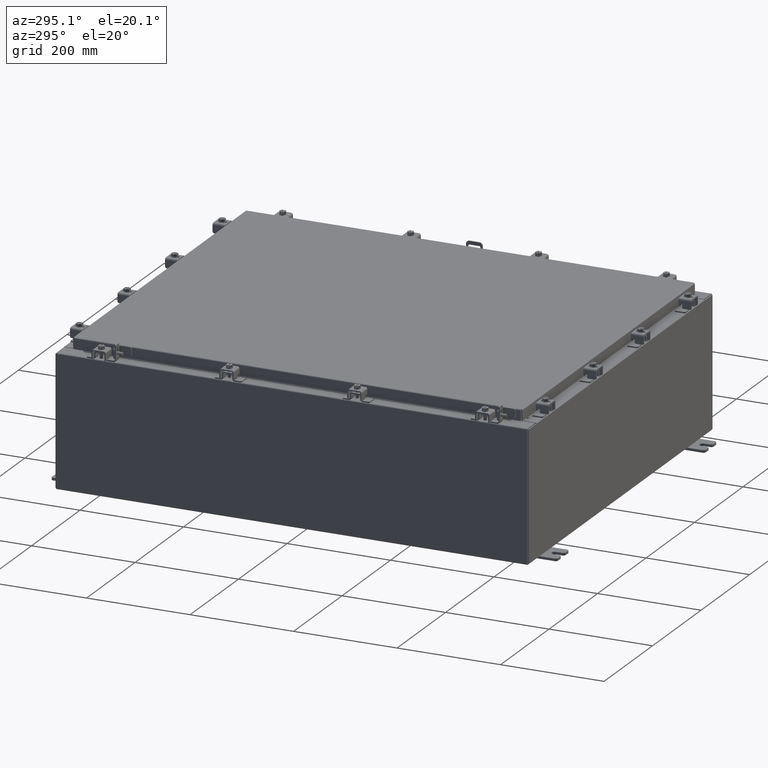
[diagram: clean part render]
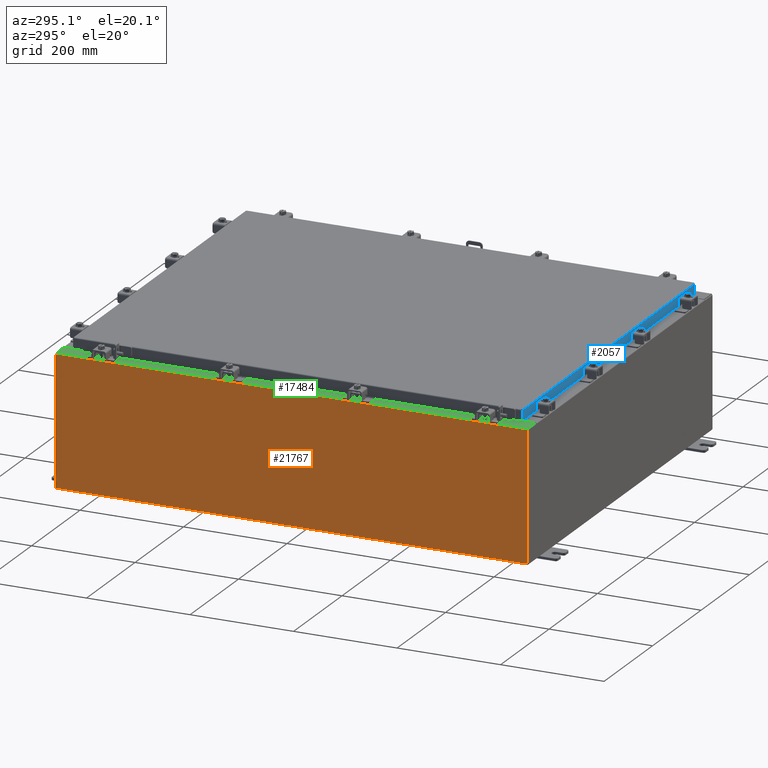
[diagram: same view with three faces highlighted in distinct colors, each labeled with its STEP entity id]
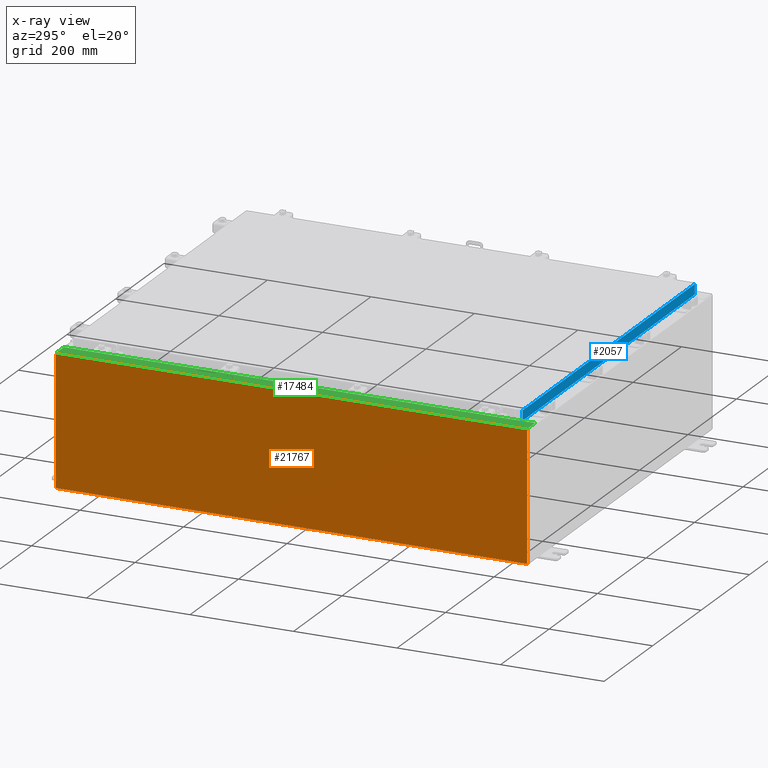
[diagram: x-ray of the same camera — body ghosted, the three highlighted faces saturated]
A machine part, auxiliary view with three faces highlighted in distinct colors.
The next image is the same camera in x-ray (body ghosted, the three faces saturated) — at least one of them is partly hidden behind the body in this view.
Their STEP definitions:

[orange] entity #21767 — the highlighted planar face has unit normal (1, 0, 0).
#1710 = EDGE_CURVE ( 'NONE', #20941, #20794, #20282, .T. ) ;
#1871 = LINE ( 'NONE', #9190, #11332 ) ;
#2667 = CARTESIAN_POINT ( 'NONE',  ( -15.00000000000000400, 0.0000000000000000000, -5.310705656892490100E-014 ) ) ;
#3526 = CARTESIAN_POINT ( 'NONE',  ( -15.00000000000000400, -17.92530000000000000, 0.01299999999999984700 ) ) ;
#3697 = DIRECTION ( 'NONE',  ( -0.0000000000000000000, 1.000000000000000000, -0.0000000000000000000 ) ) ;
#4293 = DIRECTION ( 'NONE',  ( 0.0000000000000000000, 1.000000000000000000, 0.0000000000000000000 ) ) ;
#4809 = PLANE ( 'NONE',  #21250 ) ;
#5246 = VECTOR ( 'NONE', #3697, 39.37007874015748100 ) ;
#6042 = VECTOR ( 'NONE', #4293, 39.37007874015748100 ) ;
#6737 = DIRECTION ( 'NONE',  ( 1.000000000000000000, 0.0000000000000000000, 3.523082860860887800E-015 ) ) ;
#7227 = LINE ( 'NONE', #11799, #6042 ) ;
#8649 = EDGE_CURVE ( 'NONE', #21251, #20794, #21217, .T. ) ;
#9190 = CARTESIAN_POINT ( 'NONE',  ( -15.00000000000000400, -17.92530000000000000, -5.310705656892490100E-014 ) ) ;
#10629 = ORIENTED_EDGE ( 'NONE', *, *, #8649, .T. ) ;
#11058 = ORIENTED_EDGE ( 'NONE', *, *, #22326, .T. ) ;
#11332 = VECTOR ( 'NONE', #24275, 39.37007874015748100 ) ;
#11799 = CARTESIAN_POINT ( 'NONE',  ( -15.00000000000003700, -17.92530000000000000, 9.837599999999998300 ) ) ;
#11827 = ORIENTED_EDGE ( 'NONE', *, *, #1710, .F. ) ;
#11847 = CARTESIAN_POINT ( 'NONE',  ( -15.00000000000003700, 17.92530000000000000, 9.837599999999998300 ) ) ;
#14516 = DIRECTION ( 'NONE',  ( 3.523082860860888200E-015, 0.0000000000000000000, -1.000000000000000000 ) ) ;
#16257 = ORIENTED_EDGE ( 'NONE', *, *, #22038, .T. ) ;
#16866 = CARTESIAN_POINT ( 'NONE',  ( -15.00000000000003700, -17.92530000000000000, 9.837599999999998300 ) ) ;
#16872 = CARTESIAN_POINT ( 'NONE',  ( -15.00000000000000400, 17.92530000000000000, 0.01299999999999984700 ) ) ;
#17253 = VERTEX_POINT ( 'NONE', #16866 ) ;
#19889 = DIRECTION ( 'NONE',  ( 3.523082860860887800E-015, 0.0000000000000000000, -1.000000000000000000 ) ) ;
#20028 = CARTESIAN_POINT ( 'NONE',  ( -15.00000000000000400, 17.92530000000000000, 0.01299999999999984300 ) ) ;
#20282 = LINE ( 'NONE', #16872, #5246 ) ;
#20484 = FACE_OUTER_BOUND ( 'NONE', #23049, .T. ) ;
#20614 = VECTOR ( 'NONE', #14516, 39.37007874015748100 ) ;
#20794 = VERTEX_POINT ( 'NONE', #20028 ) ;
#20941 = VERTEX_POINT ( 'NONE', #3526 ) ;
#21217 = LINE ( 'NONE', #22139, #20614 ) ;
#21250 = AXIS2_PLACEMENT_3D ( 'NONE', #2667, #6737, #19889 ) ;
#21251 = VERTEX_POINT ( 'NONE', #11847 ) ;
#21767 = ADVANCED_FACE ( 'NONE', ( #20484 ), #4809, .F. ) ;
#22038 = EDGE_CURVE ( 'NONE', #20941, #17253, #1871, .T. ) ;
#22139 = CARTESIAN_POINT ( 'NONE',  ( -15.00000000000000400, 17.92530000000000000, -5.310705656892490100E-014 ) ) ;
#22326 = EDGE_CURVE ( 'NONE', #17253, #21251, #7227, .T. ) ;
#23049 = EDGE_LOOP ( 'NONE', ( #11058, #10629, #11827, #16257 ) ) ;
#24275 = DIRECTION ( 'NONE',  ( -3.523082860860888200E-015, 0.0000000000000000000, 1.000000000000000000 ) ) ;

[blue] entity #2057 — the highlighted planar face has unit normal (-0, 1, -0).
#38 = CARTESIAN_POINT ( 'NONE',  ( 13.98915786437626500, -17.09400000000000100, -0.08770000000000007000 ) ) ;
#180 = DIRECTION ( 'NONE',  ( 0.0000000000000000000, -2.818880942772360100E-015, -1.000000000000000000 ) ) ;
#473 = DIRECTION ( 'NONE',  ( -1.000000000000000000, 4.379057701015054300E-047, 1.212817869044015600E-016 ) ) ;
#1074 = VECTOR ( 'NONE', #2923, 39.37007874015748100 ) ;
#1279 = CARTESIAN_POINT ( 'NONE',  ( 13.23915786437626900, -17.09399999999999800, -0.8500000000000006400 ) ) ;
#1397 = ORIENTED_EDGE ( 'NONE', *, *, #23998, .F. ) ;
#1922 = LINE ( 'NONE', #15482, #21423 ) ;
#2057 = ADVANCED_FACE ( 'NONE', ( #19112 ), #17856, .F. ) ;
#2702 = EDGE_CURVE ( 'NONE', #7568, #12283, #17916, .T. ) ;
#2883 = VECTOR ( 'NONE', #3189, 39.37007874015748100 ) ;
#2923 = DIRECTION ( 'NONE',  ( -0.0000000000000000000, -2.818880942772360100E-015, -1.000000000000000000 ) ) ;
#3189 = DIRECTION ( 'NONE',  ( -1.000000000000000000, 0.0000000000000000000, 0.0000000000000000000 ) ) ;
#4353 = LINE ( 'NONE', #19964, #24432 ) ;
#4691 = ORIENTED_EDGE ( 'NONE', *, *, #14552, .F. ) ;
#5322 = VERTEX_POINT ( 'NONE', #38 ) ;
#5406 = VECTOR ( 'NONE', #180, 39.37007874015748100 ) ;
#6539 = CARTESIAN_POINT ( 'NONE',  ( 5.844078221047488800E-030, -17.09400000000000100, 4.844676449176230700E-014 ) ) ;
#6619 = DIRECTION ( 'NONE',  ( 0.0000000000000000000, 2.818880942772360100E-015, 1.000000000000000000 ) ) ;
#6802 = DIRECTION ( 'NONE',  ( 1.000000000000000000, 3.418789178101959700E-031, -9.318824769679573900E-046 ) ) ;
#7568 = VERTEX_POINT ( 'NONE', #17601 ) ;
#7849 = CARTESIAN_POINT ( 'NONE',  ( 14.07799999999999900, -17.09400000000000500, -0.8499999999999996400 ) ) ;
#10061 = VERTEX_POINT ( 'NONE', #17418 ) ;
#10274 = EDGE_CURVE ( 'NONE', #5322, #11517, #11118, .T. ) ;
#11118 = LINE ( 'NONE', #18011, #1074 ) ;
#11517 = VERTEX_POINT ( 'NONE', #12593 ) ;
#12186 = DIRECTION ( 'NONE',  ( -3.418789178101958800E-031, 1.000000000000000000, -2.818880942772360100E-015 ) ) ;
#12283 = VERTEX_POINT ( 'NONE', #22290 ) ;
#12584 = EDGE_LOOP ( 'NONE', ( #1397, #18577, #23070, #20715, #4691, #17194 ) ) ;
#12593 = CARTESIAN_POINT ( 'NONE',  ( 13.98915786437626700, -17.09400000000000500, -0.8499999999999996400 ) ) ;
#13398 = CARTESIAN_POINT ( 'NONE',  ( -13.98915786437626900, -17.09400000000000100, 4.844676449176230700E-014 ) ) ;
#14552 = EDGE_CURVE ( 'NONE', #11517, #7568, #1922, .T. ) ;
#15280 = LINE ( 'NONE', #7849, #19110 ) ;
#15414 = LINE ( 'NONE', #13398, #5406 ) ;
#15482 = CARTESIAN_POINT ( 'NONE',  ( 14.07799999999999900, -17.09400000000000500, -0.8499999999999996400 ) ) ;
#17194 = ORIENTED_EDGE ( 'NONE', *, *, #10274, .F. ) ;
#17386 = EDGE_CURVE ( 'NONE', #12283, #10061, #15280, .T. ) ;
#17418 = CARTESIAN_POINT ( 'NONE',  ( -13.98915786437626900, -17.09400000000000500, -0.8499999999999963100 ) ) ;
#17601 = CARTESIAN_POINT ( 'NONE',  ( 13.23915786437626900, -17.09399999999999800, -0.8500000000000006400 ) ) ;
#17856 = PLANE ( 'NONE',  #21601 ) ;
#17916 = LINE ( 'NONE', #1279, #2883 ) ;
#18011 = CARTESIAN_POINT ( 'NONE',  ( 13.98915786437626700, -17.09400000000000100, -0.07469999999999978000 ) ) ;
#18117 = CARTESIAN_POINT ( 'NONE',  ( -13.98915786437626900, -17.09400000000000100, -0.08770000000000007000 ) ) ;
#18577 = ORIENTED_EDGE ( 'NONE', *, *, #22906, .T. ) ;
#19082 = DIRECTION ( 'NONE',  ( -1.000000000000000000, 4.379057701015054300E-047, 1.212817869044015600E-016 ) ) ;
#19110 = VECTOR ( 'NONE', #19082, 39.37007874015748100 ) ;
#19112 = FACE_OUTER_BOUND ( 'NONE', #12584, .T. ) ;
#19964 = CARTESIAN_POINT ( 'NONE',  ( 14.07799999999999800, -17.09400000000000100, -0.08770000000000007000 ) ) ;
#20715 = ORIENTED_EDGE ( 'NONE', *, *, #2702, .F. ) ;
#20784 = VERTEX_POINT ( 'NONE', #18117 ) ;
#21423 = VECTOR ( 'NONE', #473, 39.37007874015748100 ) ;
#21601 = AXIS2_PLACEMENT_3D ( 'NONE', #6539, #12186, #6619 ) ;
#22290 = CARTESIAN_POINT ( 'NONE',  ( -13.23915786437626900, -17.09399999999999800, -0.8500000000000006400 ) ) ;
#22906 = EDGE_CURVE ( 'NONE', #20784, #10061, #15414, .T. ) ;
#23070 = ORIENTED_EDGE ( 'NONE', *, *, #17386, .F. ) ;
#23998 = EDGE_CURVE ( 'NONE', #20784, #5322, #4353, .T. ) ;
#24432 = VECTOR ( 'NONE', #6802, 39.37007874015748100 ) ;

[green] entity #17484 — the highlighted planar face has unit normal (0, 0, -1).
#70 = CARTESIAN_POINT ( 'NONE',  ( -7.105562016127585500E-014, 17.92530000000000000, 9.925300000000104800 ) ) ;
#367 = DIRECTION ( 'NONE',  ( 1.000000000000000000, -8.758115402030108600E-047, 7.132762385546384700E-015 ) ) ;
#602 = EDGE_CURVE ( 'NONE', #5800, #18126, #14696, .T. ) ;
#1046 = AXIS2_PLACEMENT_3D ( 'NONE', #8263, #21416, #10132 ) ;
#1253 = ORIENTED_EDGE ( 'NONE', *, *, #19678, .F. ) ;
#1603 = CARTESIAN_POINT ( 'NONE',  ( -13.75005000000003900, -16.63109999999998600, 9.925300000000007100 ) ) ;
#1877 = EDGE_CURVE ( 'NONE', #8857, #5800, #11727, .T. ) ;
#1879 = VERTEX_POINT ( 'NONE', #23015 ) ;
#1893 = VECTOR ( 'NONE', #18082, 39.37007874015748100 ) ;
#2461 = DIRECTION ( 'NONE',  ( -7.132762385546384700E-015, -0.0000000000000000000, 1.000000000000000000 ) ) ;
#2550 = CARTESIAN_POINT ( 'NONE',  ( -13.71270000000004100, -16.59374999999998900, 9.925300000000007100 ) ) ;
#3109 = CARTESIAN_POINT ( 'NONE',  ( -13.75005000000003900, 16.63110000000000000, 9.925300000000007100 ) ) ;
#4066 = VERTEX_POINT ( 'NONE', #1603 ) ;
#4213 = DIRECTION ( 'NONE',  ( 1.000000000000000000, 0.0000000000000000000, 0.0000000000000000000 ) ) ;
#4515 = DIRECTION ( 'NONE',  ( -0.0000000000000000000, 1.000000000000000000, -0.0000000000000000000 ) ) ;
#4778 = ORIENTED_EDGE ( 'NONE', *, *, #22789, .F. ) ;
#4908 = CARTESIAN_POINT ( 'NONE',  ( -13.69970000000003900, -5.858168245728885200E-030, 9.925300000000007100 ) ) ;
#5758 = VERTEX_POINT ( 'NONE', #12440 ) ;
#5800 = VERTEX_POINT ( 'NONE', #3109 ) ;
#5846 = CARTESIAN_POINT ( 'NONE',  ( -13.75005000000003900, -16.61242499999998800, 9.925300000000007100 ) ) ;
#5915 = ORIENTED_EDGE ( 'NONE', *, *, #1877, .F. ) ;
#6119 = CARTESIAN_POINT ( 'NONE',  ( -13.69970000000003900, 16.63110000000000400, 9.925300000000007100 ) ) ;
#6487 = ORIENTED_EDGE ( 'NONE', *, *, #7069, .F. ) ;
#7006 = CARTESIAN_POINT ( 'NONE',  ( -13.71270000000004100, -16.59374999999998900, 9.925300000000007100 ) ) ;
#7069 = EDGE_CURVE ( 'NONE', #19553, #1879, #15676, .T. ) ;
#7726 = CARTESIAN_POINT ( 'NONE',  ( -13.69970000000003900, 17.92530000000000000, 9.925300000000007100 ) ) ;
#7772 = DIRECTION ( 'NONE',  ( 1.000000000000000000, 0.0000000000000000000, 0.0000000000000000000 ) ) ;
#7801 = LINE ( 'NONE', #22488, #17177 ) ;
#7859 = LINE ( 'NONE', #24224, #22286 ) ;
#7989 = CARTESIAN_POINT ( 'NONE',  ( -13.75005000000003900, 16.59375000000000000, 9.925300000000007100 ) ) ;
#8263 = CARTESIAN_POINT ( 'NONE',  ( -7.105562016127585500E-014, 0.0000000000000000000, 9.925300000000104800 ) ) ;
#8642 = ORIENTED_EDGE ( 'NONE', *, *, #10632, .T. ) ;
#8673 = EDGE_CURVE ( 'NONE', #16698, #13141, #15602, .T. ) ;
#8714 = LINE ( 'NONE', #70, #18660 ) ;
#8857 = VERTEX_POINT ( 'NONE', #11311 ) ;
#9342 = VECTOR ( 'NONE', #4515, 39.37007874015748100 ) ;
#9586 = EDGE_CURVE ( 'NONE', #18470, #16698, #10288, .T. ) ;
#9898 = DIRECTION ( 'NONE',  ( -1.000000000000000000, -4.340572780399910900E-014, 0.0000000000000000000 ) ) ;
#10132 = DIRECTION ( 'NONE',  ( -1.000000000000000000, 0.0000000000000000000, -7.132762385546384700E-015 ) ) ;
#10288 = LINE ( 'NONE', #23008, #18497 ) ;
#10366 = CARTESIAN_POINT ( 'NONE',  ( -13.69970000000003900, -16.63109999999998600, 9.925300000000007100 ) ) ;
#10632 = EDGE_CURVE ( 'NONE', #12515, #5758, #8714, .T. ) ;
#10676 = VECTOR ( 'NONE', #15746, 39.37007874015748100 ) ;
#11196 = VECTOR ( 'NONE', #16501, 39.37007874015748100 ) ;
#11311 = CARTESIAN_POINT ( 'NONE',  ( -13.69970000000003900, 16.63110000000000400, 9.925300000000007100 ) ) ;
#11404 = DIRECTION ( 'NONE',  ( -1.000000000000000000, -1.087045829762336900E-031, -7.132762385546384700E-015 ) ) ;
#11727 = LINE ( 'NONE', #6119, #21159 ) ;
#12240 = ORIENTED_EDGE ( 'NONE', *, *, #19333, .F. ) ;
#12440 = CARTESIAN_POINT ( 'NONE',  ( -14.91230000000003700, 17.92530000000000000, 9.925299999999998200 ) ) ;
#12515 = VERTEX_POINT ( 'NONE', #7726 ) ;
#12623 = CARTESIAN_POINT ( 'NONE',  ( -14.91230000000003700, -17.92530000000000000, 9.925299999999998200 ) ) ;
#12699 = EDGE_LOOP ( 'NONE', ( #5915, #16640, #8642, #12240, #13215, #19797, #4778, #17466, #6487, #1253, #19053, #17026 ) ) ;
#13141 = VERTEX_POINT ( 'NONE', #10366 ) ;
#13201 = EDGE_CURVE ( 'NONE', #8857, #12515, #15060, .T. ) ;
#13215 = ORIENTED_EDGE ( 'NONE', *, *, #9586, .T. ) ;
#13557 = LINE ( 'NONE', #15484, #18538 ) ;
#13639 = VERTEX_POINT ( 'NONE', #21112 ) ;
#13778 = CARTESIAN_POINT ( 'NONE',  ( -13.75005000000003900, 16.61242500000000200, 9.925300000000007100 ) ) ;
#14596 = CARTESIAN_POINT ( 'NONE',  ( -13.69970000000003900, -5.858168245728885200E-030, 9.925300000000007100 ) ) ;
#14696 = CIRCLE ( 'NONE', #15065, 0.01867499999999949400 ) ;
#15060 = LINE ( 'NONE', #4908, #1893 ) ;
#15065 = AXIS2_PLACEMENT_3D ( 'NONE', #13778, #2461, #15662 ) ;
#15360 = EDGE_CURVE ( 'NONE', #1879, #4066, #16059, .T. ) ;
#15484 = CARTESIAN_POINT ( 'NONE',  ( -13.75005000000003900, 16.59375000000000000, 9.925300000000007100 ) ) ;
#15602 = LINE ( 'NONE', #14596, #11196 ) ;
#15662 = DIRECTION ( 'NONE',  ( 1.000000000000000000, 0.0000000000000000000, 0.0000000000000000000 ) ) ;
#15676 = LINE ( 'NONE', #2550, #10676 ) ;
#15746 = DIRECTION ( 'NONE',  ( -1.000000000000000000, 0.0000000000000000000, 0.0000000000000000000 ) ) ;
#16059 = CIRCLE ( 'NONE', #21247, 0.01867499999999949400 ) ;
#16501 = DIRECTION ( 'NONE',  ( -4.276128853718621600E-031, 1.000000000000000000, -3.050061104355376000E-045 ) ) ;
#16640 = ORIENTED_EDGE ( 'NONE', *, *, #13201, .T. ) ;
#16698 = VERTEX_POINT ( 'NONE', #21017 ) ;
#16843 = EDGE_CURVE ( 'NONE', #18126, #13639, #13557, .T. ) ;
#17026 = ORIENTED_EDGE ( 'NONE', *, *, #602, .F. ) ;
#17177 = VECTOR ( 'NONE', #24401, 39.37007874015748100 ) ;
#17466 = ORIENTED_EDGE ( 'NONE', *, *, #15360, .F. ) ;
#17484 = ADVANCED_FACE ( 'NONE', ( #21791 ), #21326, .F. ) ;
#18082 = DIRECTION ( 'NONE',  ( -4.276128853718621600E-031, 1.000000000000000000, -3.050061104355376000E-045 ) ) ;
#18126 = VERTEX_POINT ( 'NONE', #7989 ) ;
#18470 = VERTEX_POINT ( 'NONE', #12623 ) ;
#18497 = VECTOR ( 'NONE', #367, 39.37007874015748100 ) ;
#18538 = VECTOR ( 'NONE', #4213, 39.37007874015748100 ) ;
#18660 = VECTOR ( 'NONE', #11404, 39.37007874015748100 ) ;
#18987 = DIRECTION ( 'NONE',  ( -7.132762385546384700E-015, -0.0000000000000000000, 1.000000000000000000 ) ) ;
#19053 = ORIENTED_EDGE ( 'NONE', *, *, #16843, .F. ) ;
#19329 = LINE ( 'NONE', #21415, #9342 ) ;
#19333 = EDGE_CURVE ( 'NONE', #18470, #5758, #19329, .T. ) ;
#19553 = VERTEX_POINT ( 'NONE', #7006 ) ;
#19678 = EDGE_CURVE ( 'NONE', #13639, #19553, #7859, .T. ) ;
#19797 = ORIENTED_EDGE ( 'NONE', *, *, #8673, .T. ) ;
#20475 = DIRECTION ( 'NONE',  ( -0.0000000000000000000, -1.000000000000000000, -0.0000000000000000000 ) ) ;
#21017 = CARTESIAN_POINT ( 'NONE',  ( -13.69970000000003900, -17.92530000000000000, 9.925300000000007100 ) ) ;
#21112 = CARTESIAN_POINT ( 'NONE',  ( -13.71270000000004100, 16.59375000000000000, 9.925300000000007100 ) ) ;
#21159 = VECTOR ( 'NONE', #9898, 39.37007874015748100 ) ;
#21247 = AXIS2_PLACEMENT_3D ( 'NONE', #5846, #18987, #7772 ) ;
#21326 = PLANE ( 'NONE',  #1046 ) ;
#21415 = CARTESIAN_POINT ( 'NONE',  ( -14.91230000000003700, 17.92530000000000000, 9.925299999999998200 ) ) ;
#21416 = DIRECTION ( 'NONE',  ( 7.132762385546384700E-015, 0.0000000000000000000, -1.000000000000000000 ) ) ;
#21791 = FACE_OUTER_BOUND ( 'NONE', #12699, .T. ) ;
#22286 = VECTOR ( 'NONE', #20475, 39.37007874015748100 ) ;
#22488 = CARTESIAN_POINT ( 'NONE',  ( -13.75005000000003900, -16.63109999999998600, 9.925300000000007100 ) ) ;
#22789 = EDGE_CURVE ( 'NONE', #4066, #13141, #7801, .T. ) ;
#23008 = CARTESIAN_POINT ( 'NONE',  ( -7.105562016127585500E-014, -17.92530000000000000, 9.925300000000104800 ) ) ;
#23015 = CARTESIAN_POINT ( 'NONE',  ( -13.75005000000003900, -16.59374999999998900, 9.925300000000007100 ) ) ;
#24224 = CARTESIAN_POINT ( 'NONE',  ( -13.71270000000004100, 16.59374999999999600, 9.925300000000007100 ) ) ;
#24401 = DIRECTION ( 'NONE',  ( 1.000000000000000000, -4.340572780399910900E-014, 0.0000000000000000000 ) ) ;